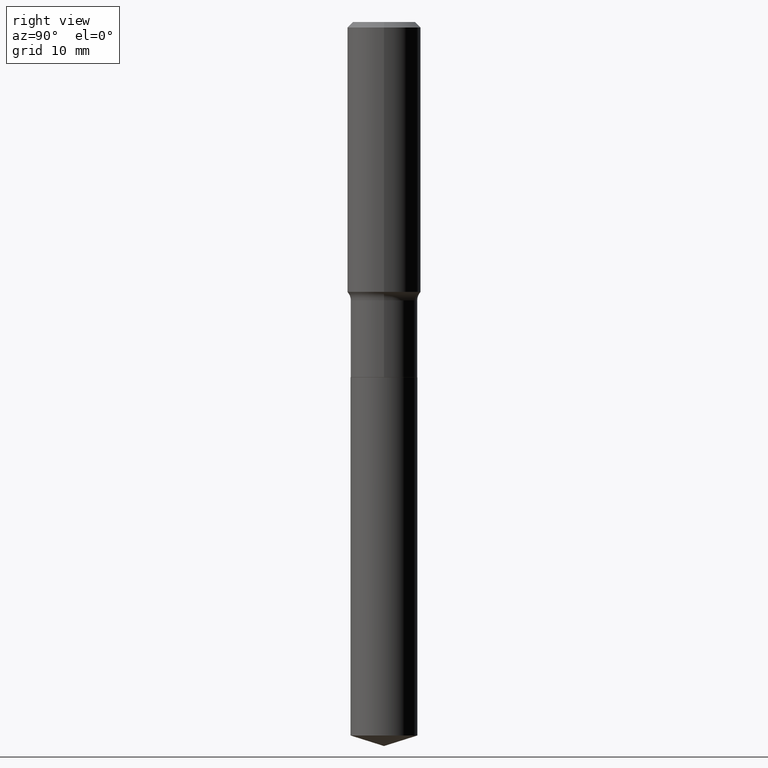
[diagram: clean part render]
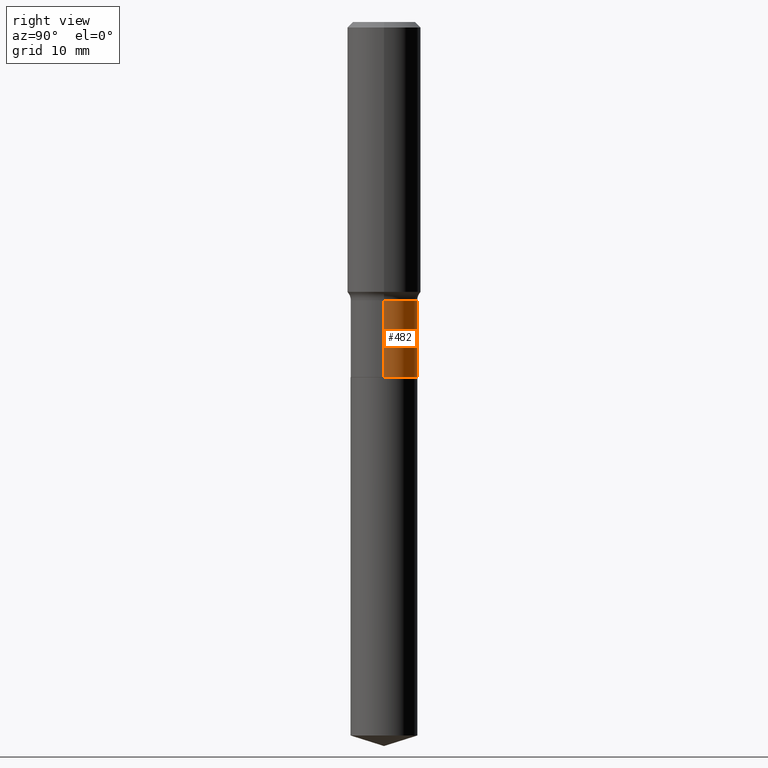
[diagram: same view with one face highlighted and labeled with its STEP entity id]
A machine part, right view. The second image highlights one B-rep face of the part: STEP entity #482.
In plain terms, the highlighted cylindrical surface (edge-blend (fillet) strip) has radius 5.4496 mm, axis along (-0, 0, 1).
Its self-contained STEP definition (entity closure, byte-faithful):
#3 = CARTESIAN_POINT ( 'NONE',  ( 0.2145499999999999630, -1.498194642497588202E-15, 1.046183727247017934E-29 ) ) ;
#5 = VERTEX_POINT ( 'NONE', #217 ) ;
#9 = EDGE_CURVE ( 'NONE', #457, #191, #365, .T. ) ;
#13 = AXIS2_PLACEMENT_3D ( 'NONE', #483, #258, #450 ) ;
#23 = CARTESIAN_POINT ( 'NONE',  ( -0.2145499999999999907, -5.571966381625396973E-15, -2.278999999999999471 ) ) ;
#63 = CARTESIAN_POINT ( 'NONE',  ( 0.2145499999999999907, -9.455280613721116027E-15, -2.278999999999999471 ) ) ;
#73 = DIRECTION ( 'NONE',  ( -2.445468806185136597E-29, 3.491481338843145583E-15, 1.000000000000000000 ) ) ;
#83 = VERTEX_POINT ( 'NONE', #63 ) ;
#95 = AXIS2_PLACEMENT_3D ( 'NONE', #146, #73, #231 ) ;
#98 = AXIS2_PLACEMENT_3D ( 'NONE', #357, #212, #176 ) ;
#142 = VECTOR ( 'NONE', #156, 39.37007874015748143 ) ;
#144 = EDGE_CURVE ( 'NONE', #83, #457, #477, .T. ) ;
#146 = CARTESIAN_POINT ( 'NONE',  ( 4.367607287846652814E-29, -6.235785671173856083E-15, -1.785999999999999366 ) ) ;
#156 = DIRECTION ( 'NONE',  ( -2.445468806185136877E-29, 3.491481338843145188E-15, 1.000000000000000000 ) ) ;
#176 = DIRECTION ( 'NONE',  ( 1.000000000000000000, -6.982962677686266711E-15, 4.876176775795936353E-29 ) ) ;
#180 = EDGE_CURVE ( 'NONE', #5, #191, #209, .T. ) ;
#191 = VERTEX_POINT ( 'NONE', #415 ) ;
#198 = LINE ( 'NONE', #3, #142 ) ;
#200 = ORIENTED_EDGE ( 'NONE', *, *, #430, .F. ) ;
#209 = CIRCLE ( 'NONE', #95, 0.2145499999999999352 ) ;
#212 = DIRECTION ( 'NONE',  ( -2.445468806185136597E-29, 3.491481338843145583E-15, 1.000000000000000000 ) ) ;
#217 = CARTESIAN_POINT ( 'NONE',  ( 0.2145499999999999352, -7.733980313671444089E-15, -1.785999999999999366 ) ) ;
#231 = DIRECTION ( 'NONE',  ( 1.000000000000000000, -6.982962677686266711E-15, 0.000000000000000000 ) ) ;
#253 = ORIENTED_EDGE ( 'NONE', *, *, #180, .F. ) ;
#258 = DIRECTION ( 'NONE',  ( -2.445468806185136597E-29, 3.491481338843145583E-15, 1.000000000000000000 ) ) ;
#296 = CARTESIAN_POINT ( 'NONE',  ( -0.2145499999999999630, 1.524469439573294686E-15, -1.055357523614189967E-29 ) ) ;
#304 = ORIENTED_EDGE ( 'NONE', *, *, #144, .T. ) ;
#357 = CARTESIAN_POINT ( 'NONE',  ( 0.000000000000000000, 0.000000000000000000, 0.000000000000000000 ) ) ;
#363 = FACE_OUTER_BOUND ( 'NONE', #414, .T. ) ;
#365 = LINE ( 'NONE', #296, #445 ) ;
#414 = EDGE_LOOP ( 'NONE', ( #304, #490, #253, #200 ) ) ;
#415 = CARTESIAN_POINT ( 'NONE',  ( -0.2145499999999999352, -5.571966381625397761E-15, -1.785999999999999366 ) ) ;
#430 = EDGE_CURVE ( 'NONE', #83, #5, #198, .T. ) ;
#443 = DIRECTION ( 'NONE',  ( -2.445468806185136877E-29, 3.491481338843145188E-15, 1.000000000000000000 ) ) ;
#445 = VECTOR ( 'NONE', #443, 39.37007874015748143 ) ;
#450 = DIRECTION ( 'NONE',  ( 1.000000000000000000, -6.982962677686269077E-15, 0.000000000000000000 ) ) ;
#457 = VERTEX_POINT ( 'NONE', #23 ) ;
#474 = CYLINDRICAL_SURFACE ( 'NONE', #98, 0.2145499999999999630 ) ;
#477 = CIRCLE ( 'NONE', #13, 0.2145499999999999907 ) ;
#482 = ADVANCED_FACE ( 'NONE', ( #363 ), #474, .T. ) ;
#483 = CARTESIAN_POINT ( 'NONE',  ( 5.573223409295925255E-29, -7.957085971223527233E-15, -2.278999999999999471 ) ) ;
#490 = ORIENTED_EDGE ( 'NONE', *, *, #9, .T. ) ;